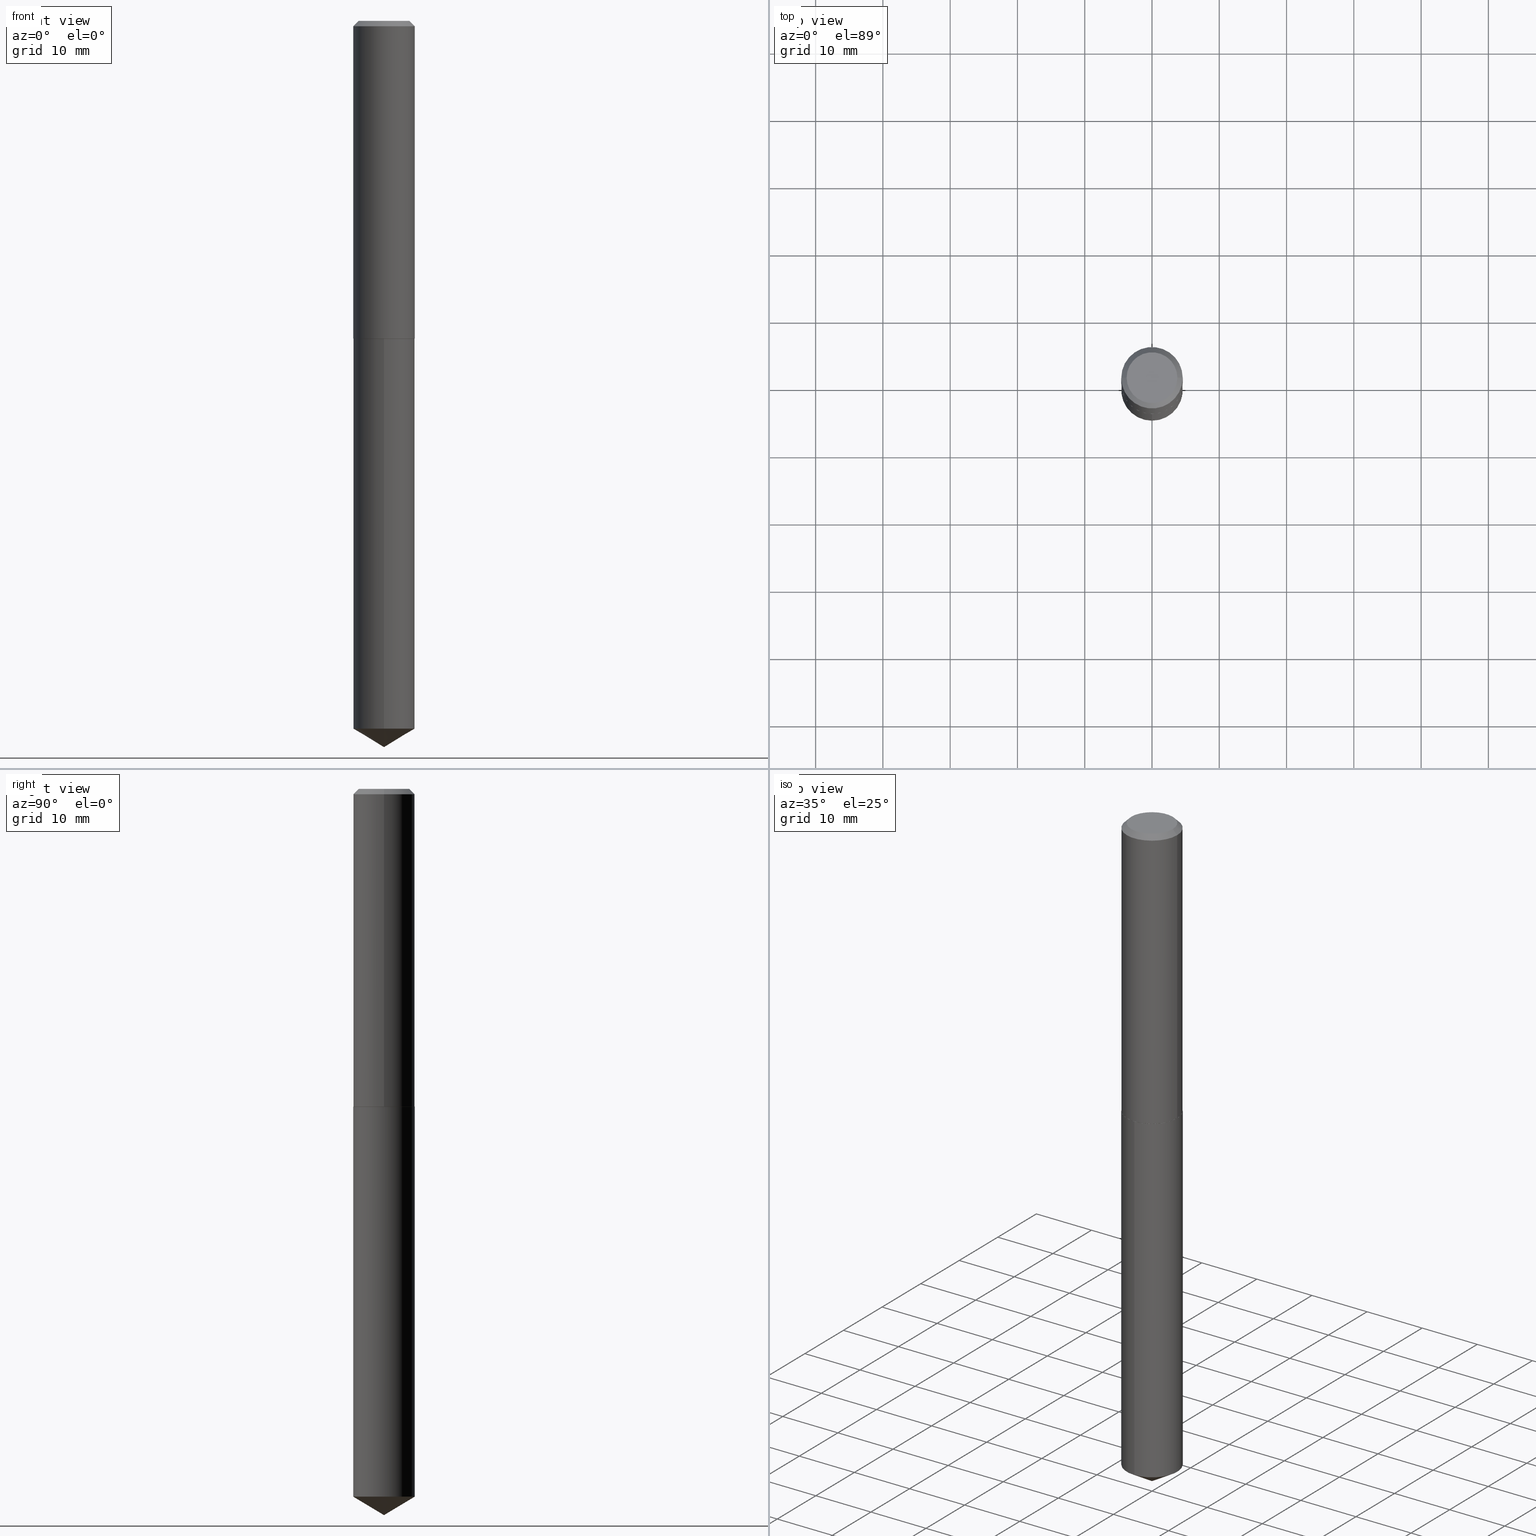
[diagram: canonical four-view strip — front | top / right | iso, engineering-drawing reading convention]
A machine part, canonical four-view strip (front | top / right | iso — engineering-drawing reading convention). The complete STEP part file that produces these views, byte-faithful:
ISO-10303-21;
HEADER;
FILE_DESCRIPTION (( 'STEP AP203' ),
    '1' );
FILE_NAME ('51123.STEP',
    '2024-04-22T18:31:56',
    ( '' ),
    ( '' ),
    'SwSTEP 2.0',
    'SolidWorks 2023',
    '' );
FILE_SCHEMA (( 'CONFIG_CONTROL_DESIGN' ));
ENDSEC;

DATA;
#1 = EDGE_LOOP ( 'NONE', ( #96, #349, #189, #140 ) ) ;
#2 = CALENDAR_DATE ( 2024, 22, 4 ) ;
#3 = DIRECTION ( 'NONE',  ( -1.000000000000000000, 6.982962677686265922E-15, 0.000000000000000000 ) ) ;
#4 = EDGE_LOOP ( 'NONE', ( #39, #310, #257, #98 ) ) ;
#5 = EDGE_CURVE ( 'NONE', #43, #371, #337, .T. ) ;
#6 = CC_DESIGN_PERSON_AND_ORGANIZATION_ASSIGNMENT ( #384, #389, ( #263 ) ) ;
#7 = VECTOR ( 'NONE', #178, 39.37007874015748143 ) ;
#8 = PRODUCT_RELATED_PRODUCT_CATEGORY ( 'detail', '', ( #123 ) ) ;
#9 = DIRECTION ( 'NONE',  ( -6.982962677686265922E-15, -1.000000000000000000, 3.040454083098790380E-15 ) ) ;
#10 = ORIENTED_EDGE ( 'NONE', *, *, #159, .F. ) ;
#11 = DIRECTION ( 'NONE',  ( -2.445489564212384011E-29, 3.491451612166653483E-15, 1.000000000000000000 ) ) ;
#12 = CARTESIAN_POINT ( 'NONE',  ( 4.547104698220641654E-29, -6.492060401444943851E-15, -1.859399999999999498 ) ) ;
#13 = AXIS2_PLACEMENT_3D ( 'NONE', #213, #262, #379 ) ;
#14 = DIRECTION ( 'NONE',  ( -2.445489564212384011E-29, 3.491451612166653483E-15, 1.000000000000000000 ) ) ;
#15 = ORIENTED_EDGE ( 'NONE', *, *, #191, .T. ) ;
#16 = CARTESIAN_POINT ( 'NONE',  ( 1.012924116273072671E-28, -1.446173634836522506E-14, -4.142025346760748405 ) ) ;
#17 = AXIS2_PLACEMENT_3D ( 'NONE', #16, #373, #229 ) ;
#18 = CIRCLE ( 'NONE', #50, 0.1797000000000001929 ) ;
#19 = ORIENTED_EDGE ( 'NONE', *, *, #45, .F. ) ;
#20 = COORDINATED_UNIVERSAL_TIME_OFFSET ( 5, 0, .BEHIND. ) ;
#21 = DIRECTION ( 'NONE',  ( -2.445489564212384011E-29, 3.491451612166653483E-15, 1.000000000000000000 ) ) ;
#22 = AXIS2_PLACEMENT_3D ( 'NONE', #206, #338, #284 ) ;
#23 = APPROVAL_STATUS ( 'not_yet_approved' ) ;
#24 = CONICAL_SURFACE ( 'NONE', #78, 0.1796999999999999986, 0.7853981633974450594 ) ;
#25 = EDGE_LOOP ( 'NONE', ( #15, #202, #370, #327 ) ) ;
#26 = CARTESIAN_POINT ( 'NONE',  ( 4.547104698220642215E-29, -6.492060401444944640E-15, -1.859399999999999942 ) ) ;
#27 = DIRECTION ( 'NONE',  ( 6.090539988449793424E-15, 0.8571673007021159973, 0.5150380749100480493 ) ) ;
#28 = FACE_OUTER_BOUND ( 'NONE', #364, .T. ) ;
#29 = PERSON_AND_ORGANIZATION ( #282, #381 ) ;
#30 = PERSON_AND_ORGANIZATION ( #282, #381 ) ;
#31 = CIRCLE ( 'NONE', #59, 0.1796999999999999986 ) ;
#32 = CC_DESIGN_APPROVAL ( #374, ( #143 ) ) ;
#33 = CYLINDRICAL_SURFACE ( 'NONE', #158, 0.1796999999999999986 ) ;
#34 = EDGE_LOOP ( 'NONE', ( #10, #249, #68 ) ) ;
#35 = CARTESIAN_POINT ( 'NONE',  ( 1.039325345295090435E-28, -1.483877989927281393E-14, -4.250000000000000000 ) ) ;
#36 = ADVANCED_FACE ( 'NONE', ( #230 ), #182, .T. ) ;
#37 = ORIENTED_EDGE ( 'NONE', *, *, #111, .T. ) ;
#38 = CARTESIAN_POINT ( 'NONE',  ( 0.000000000000000000, 0.000000000000000000, 0.000000000000000000 ) ) ;
#39 = ORIENTED_EDGE ( 'NONE', *, *, #258, .F. ) ;
#40 = DATE_AND_TIME ( #2, #183 ) ;
#41 = CARTESIAN_POINT ( 'NONE',  ( 1.012924116273072671E-28, -1.446173634836522506E-14, -4.142025346760748405 ) ) ;
#42 = APPROVAL_STATUS ( 'not_yet_approved' ) ;
#43 = VERTEX_POINT ( 'NONE', #149 ) ;
#44 = CC_DESIGN_APPROVAL ( #186, ( #248 ) ) ;
#45 = EDGE_CURVE ( 'NONE', #129, #43, #115, .T. ) ;
#46 = CARTESIAN_POINT ( 'NONE',  ( 7.642090019328603538E-31, -1.091087918388490390E-16, -0.03125000000000021511 ) ) ;
#47 = CALENDAR_DATE ( 2024, 22, 4 ) ;
#48 = ORIENTED_EDGE ( 'NONE', *, *, #256, .T. ) ;
#49 = LINE ( 'NONE', #259, #7 ) ;
#50 = AXIS2_PLACEMENT_3D ( 'NONE', #264, #237, #240 ) ;
#51 = CARTESIAN_POINT ( 'NONE',  ( 1.276845296160945187E-15, 0.1796999999999935038, -1.859400000000000164 ) ) ;
#52 = EDGE_CURVE ( 'NONE', #175, #329, #243, .T. ) ;
#53 = CC_DESIGN_DATE_AND_TIME_ASSIGNMENT ( #164, #350, ( #143 ) ) ;
#54 = DIRECTION ( 'NONE',  ( -2.445468806185136597E-29, 3.491481338843145583E-15, 1.000000000000000000 ) ) ;
#55 = LENGTH_MEASURE_WITH_UNIT ( LENGTH_MEASURE( 0.02539999999999999897 ), #316 );
#56 = DIRECTION ( 'NONE',  ( -2.445489564212384011E-29, 3.491451612166653483E-15, 1.000000000000000000 ) ) ;
#57 = DIRECTION ( 'NONE',  ( 1.000000000000000000, -6.982962677686265922E-15, 4.876176775795935232E-29 ) ) ;
#58 = EDGE_CURVE ( 'NONE', #371, #43, #31, .T. ) ;
#59 = AXIS2_PLACEMENT_3D ( 'NONE', #354, #92, #307 ) ;
#60 = AXIS2_PLACEMENT_3D ( 'NONE', #269, #295, #163 ) ;
#61 = ORIENTED_EDGE ( 'NONE', *, *, #58, .F. ) ;
#62 = EDGE_CURVE ( 'NONE', #367, #271, #154, .T. ) ;
#63 = APPLICATION_PROTOCOL_DEFINITION ( 'international standard', 'config_control_design', 1994, #332 ) ;
#64 = DIRECTION ( 'NONE',  ( 1.000000000000000000, -6.982962677686265922E-15, 4.876176775795935793E-29 ) ) ;
#65 = APPROVAL_ROLE ( '' ) ;
#66 = AXIS2_PLACEMENT_3D ( 'NONE', #41, #14, #176 ) ;
#67 = CIRCLE ( 'NONE', #231, 0.1484499999999999986 ) ;
#68 = ORIENTED_EDGE ( 'NONE', *, *, #216, .F. ) ;
#69 = EDGE_LOOP ( 'NONE', ( #304, #100 ) ) ;
#70 = ORIENTED_EDGE ( 'NONE', *, *, #5, .T. ) ;
#71 = ORIENTED_EDGE ( 'NONE', *, *, #62, .F. ) ;
#72 = VECTOR ( 'NONE', #280, 39.37007874015748143 ) ;
#73 = APPROVAL_ROLE ( '' ) ;
#74 = DIRECTION ( 'NONE',  ( -2.445489564212384011E-29, 3.491451612166653483E-15, 1.000000000000000000 ) ) ;
#75 = UNCERTAINTY_MEASURE_WITH_UNIT (LENGTH_MEASURE( 1.000000000000000082E-05 ), #323, 'distance_accuracy_value', 'NONE');
#76 = ORIENTED_EDGE ( 'NONE', *, *, #293, .T. ) ;
#77 = CIRCLE ( 'NONE', #66, 0.1796999999999999986 ) ;
#78 = AXIS2_PLACEMENT_3D ( 'NONE', #144, #366, #120 ) ;
#79 = CC_DESIGN_PERSON_AND_ORGANIZATION_ASSIGNMENT ( #317, #270, ( #248 ) ) ;
#80 = PERSON_AND_ORGANIZATION_ROLE ( 'design_owner' ) ;
#81 = DIRECTION ( 'NONE',  ( -2.445468806185136597E-29, 3.491481338843145583E-15, 1.000000000000000000 ) ) ;
#82 = APPROVAL ( #23, 'UNSPECIFIED' ) ;
#83 = DIRECTION ( 'NONE',  ( 1.000000000000000000, -6.982962677686265922E-15, 0.000000000000000000 ) ) ;
#84 = DIRECTION ( 'NONE',  ( -2.445489564212384011E-29, 3.491451612166653483E-15, 1.000000000000000000 ) ) ;
#85 = CIRCLE ( 'NONE', #170, 0.1796999999999999986 ) ;
#86 = DIRECTION ( 'NONE',  ( 1.000000000000000000, -6.982962677686265133E-15, 0.000000000000000000 ) ) ;
#87 = FACE_OUTER_BOUND ( 'NONE', #383, .T. ) ;
#88 = CALENDAR_DATE ( 2024, 22, 4 ) ;
#89 = DIRECTION ( 'NONE',  ( -0.7071067811864026886, 7.493145998869830357E-15, 0.7071067811866923458 ) ) ;
#90 = ADVANCED_FACE ( 'NONE', ( #179 ), #252, .T. ) ;
#91 = CARTESIAN_POINT ( 'NONE',  ( 7.642090019328603538E-31, -1.091087918388490390E-16, -0.03125000000000021511 ) ) ;
#92 = DIRECTION ( 'NONE',  ( -2.445468806185136597E-29, 3.491481338843145583E-15, 1.000000000000000000 ) ) ;
#93 = DIRECTION ( 'NONE',  ( -6.982962677686265922E-15, -1.000000000000000000, 3.040454083098790380E-15 ) ) ;
#94 = EDGE_LOOP ( 'NONE', ( #197, #245, #376, #70 ) ) ;
#95 = VECTOR ( 'NONE', #21, 39.37007874015748143 ) ;
#96 = ORIENTED_EDGE ( 'NONE', *, *, #151, .F. ) ;
#97 = CYLINDRICAL_SURFACE ( 'NONE', #325, 0.1796999999999999986 ) ;
#98 = ORIENTED_EDGE ( 'NONE', *, *, #134, .F. ) ;
#99 = SHAPE_DEFINITION_REPRESENTATION ( #347, #126 ) ;
#100 = ORIENTED_EDGE ( 'NONE', *, *, #151, .T. ) ;
#101 = DESIGN_CONTEXT ( 'detailed design', #345, 'design' ) ;
#102 = VERTEX_POINT ( 'NONE', #225 ) ;
#103 = CLOSED_SHELL ( 'NONE', ( #198, #352, #266, #382, #204 ) ) ;
#104 = AXIS2_PLACEMENT_3D ( 'NONE', #234, #54, #83 ) ;
#105 = DIRECTION ( 'NONE',  ( 1.000000000000000000, -6.982962677686265922E-15, 0.000000000000000000 ) ) ;
#106 = DIRECTION ( 'NONE',  ( -1.000000000000000000, 6.982962677686265922E-15, -4.876176775795935793E-29 ) ) ;
#107 = MANIFOLD_SOLID_BREP ( 'Body-Move/Copy2[2]', #385 ) ;
#108 = FACE_OUTER_BOUND ( 'NONE', #205, .T. ) ;
#109 = DIRECTION ( 'NONE',  ( 0.7071067811864026886, -2.468850131080739687E-15, 0.7071067811866923458 ) ) ;
#110 = DIMENSIONAL_EXPONENTS ( 1.000000000000000000, 0.000000000000000000, 0.000000000000000000, 0.000000000000000000, 0.000000000000000000, 0.000000000000000000, 0.000000000000000000 ) ;
#111 = EDGE_CURVE ( 'NONE', #226, #177, #181, .T. ) ;
#112 = CC_DESIGN_PERSON_AND_ORGANIZATION_ASSIGNMENT ( #29, #211, ( #248 ) ) ;
#113 = CARTESIAN_POINT ( 'NONE',  ( -1.254838393180120559E-15, -0.1797000000000144315, -4.142025346760747517 ) ) ;
#114 = CARTESIAN_POINT ( 'NONE',  ( 0.1797000000000001929, -7.745153053955744867E-15, -1.858899999999999775 ) ) ;
#115 = LINE ( 'NONE', #388, #152 ) ;
#116 = VECTOR ( 'NONE', #27, 39.37007874015748854 ) ;
#117 = LOCAL_TIME ( 14, 31, 56.00000000000000000, #20 ) ;
#118 = FACE_OUTER_BOUND ( 'NONE', #34, .T. ) ;
#119 = EDGE_CURVE ( 'NONE', #333, #43, #331, .T. ) ;
#120 = DIRECTION ( 'NONE',  ( -1.000000000000000000, 6.982962677686265922E-15, 0.000000000000000000 ) ) ;
#121 = CARTESIAN_POINT ( 'NONE',  ( 4.545881963817549414E-29, -6.490314660775522348E-15, -1.858899999999999775 ) ) ;
#122 = AXIS2_PLACEMENT_3D ( 'NONE', #378, #288, #157 ) ;
#123 = PRODUCT ( '51123', '51123', '', ( #127 ) ) ;
#124 = CARTESIAN_POINT ( 'NONE',  ( -1.254838393180176568E-15, -0.1797000000000064934, -1.859399999999999054 ) ) ;
#125 = EDGE_CURVE ( 'NONE', #329, #367, #77, .T. ) ;
#126 = ADVANCED_BREP_SHAPE_REPRESENTATION ( '51123', ( #353, #107, #60 ), #215 ) ;
#127 = MECHANICAL_CONTEXT ( 'NONE', #332, 'mechanical' ) ;
#128 = CARTESIAN_POINT ( 'NONE',  ( -0.1797000000000001929, -5.213469364614620154E-15, -1.858899999999999775 ) ) ;
#129 = VERTEX_POINT ( 'NONE', #319 ) ;
#130 = PERSON_AND_ORGANIZATION ( #282, #381 ) ;
#131 = CARTESIAN_POINT ( 'NONE',  ( 4.547104698220642215E-29, -6.492060401444944640E-15, -1.859399999999999942 ) ) ;
#132 = VECTOR ( 'NONE', #89, 39.37007874015748143 ) ;
#133 = COORDINATED_UNIVERSAL_TIME_OFFSET ( 5, 0, .BEHIND. ) ;
#134 = EDGE_CURVE ( 'NONE', #102, #271, #247, .T. ) ;
#135 = FACE_OUTER_BOUND ( 'NONE', #94, .T. ) ;
#136 = DIRECTION ( 'NONE',  ( -2.445468806185136597E-29, 3.491481338843145583E-15, 1.000000000000000000 ) ) ;
#137 = PLANE ( 'NONE',  #315 ) ;
#138 = ORIENTED_EDGE ( 'NONE', *, *, #293, .F. ) ;
#139 = DIRECTION ( 'NONE',  ( -2.445489564212384011E-29, 3.491451612166653483E-15, 1.000000000000000000 ) ) ;
#140 = ORIENTED_EDGE ( 'NONE', *, *, #119, .F. ) ;
#141 = PLANE ( 'NONE',  #214 ) ;
#142 = ORIENTED_EDGE ( 'NONE', *, *, #227, .T. ) ;
#143 = PRODUCT_DEFINITION ( 'UNKNOWN', '', #248, #101 ) ;
#144 = CARTESIAN_POINT ( 'NONE',  ( 7.642090019328603538E-31, -1.091087918388490390E-16, -0.03125000000000021511 ) ) ;
#145 = AXIS2_PLACEMENT_3D ( 'NONE', #26, #195, #86 ) ;
#146 = DIRECTION ( 'NONE',  ( 2.445489564212384011E-29, -3.491451612166653483E-15, -1.000000000000000000 ) ) ;
#147 = CARTESIAN_POINT ( 'NONE',  ( 1.276845296161000998E-15, 0.1796999999999854825, -4.142025346760748405 ) ) ;
#148 = DIRECTION ( 'NONE',  ( -2.445468806185136597E-29, 3.491481338843145583E-15, 1.000000000000000000 ) ) ;
#149 = CARTESIAN_POINT ( 'NONE',  ( -0.1796999999999999986, -2.022866430146284319E-15, -0.03125000000000021511 ) ) ;
#150 = ORIENTED_EDGE ( 'NONE', *, *, #125, .F. ) ;
#151 = EDGE_CURVE ( 'NONE', #278, #333, #201, .T. ) ;
#152 = VECTOR ( 'NONE', #167, 39.37007874015748143 ) ;
#153 = CIRCLE ( 'NONE', #321, 0.1797000000000001929 ) ;
#154 = LINE ( 'NONE', #308, #314 ) ;
#155 = DIRECTION ( 'NONE',  ( -2.445468806185136877E-29, 3.491481338843145188E-15, 1.000000000000000000 ) ) ;
#156 = PERSON_AND_ORGANIZATION ( #282, #381 ) ;
#157 = DIRECTION ( 'NONE',  ( 1.000000000000000000, -6.982962677686265133E-15, 4.876190851732491074E-29 ) ) ;
#158 = AXIS2_PLACEMENT_3D ( 'NONE', #244, #74, #93 ) ;
#159 = EDGE_CURVE ( 'NONE', #175, #367, #298, .T. ) ;
#160 = ORIENTED_EDGE ( 'NONE', *, *, #159, .T. ) ;
#161 = COORDINATED_UNIVERSAL_TIME_OFFSET ( 5, 0, .BEHIND. ) ;
#162 = FACE_OUTER_BOUND ( 'NONE', #69, .T. ) ;
#163 = DIRECTION ( 'NONE',  ( 1.000000000000000000, 0.000000000000000000, 0.000000000000000000 ) ) ;
#164 = DATE_AND_TIME ( #47, #193 ) ;
#165 = DIRECTION ( 'NONE',  ( 2.438088387897960049E-29, -3.491481338843145188E-15, -1.000000000000000000 ) ) ;
#166 = ADVANCED_FACE ( 'NONE', ( #28 ), #268, .F. ) ;
#167 = DIRECTION ( 'NONE',  ( -2.445468806185136877E-29, 3.491481338843145188E-15, 1.000000000000000000 ) ) ;
#168 =( NAMED_UNIT ( * ) PLANE_ANGLE_UNIT ( ) SI_UNIT ( $, .RADIAN. ) );
#169 = DIRECTION ( 'NONE',  ( 1.000000000000000000, -6.982962677686265133E-15, 0.000000000000000000 ) ) ;
#170 = AXIS2_PLACEMENT_3D ( 'NONE', #318, #56, #313 ) ;
#171 = ORIENTED_EDGE ( 'NONE', *, *, #258, .T. ) ;
#172 = DIRECTION ( 'NONE',  ( 2.445468806185136597E-29, -3.491481338843145583E-15, -1.000000000000000000 ) ) ;
#173 = ORIENTED_EDGE ( 'NONE', *, *, #5, .F. ) ;
#174 = APPROVAL_PERSON_ORGANIZATION ( #30, #186, #291 ) ;
#175 = VERTEX_POINT ( 'NONE', #299 ) ;
#176 = DIRECTION ( 'NONE',  ( -6.982962677686265922E-15, -1.000000000000000000, 3.040454083098790380E-15 ) ) ;
#177 = VERTEX_POINT ( 'NONE', #390 ) ;
#178 = DIRECTION ( 'NONE',  ( 0.7071067811865452413, -7.319954787623248157E-15, -0.7071067811865497932 ) ) ;
#179 = FACE_OUTER_BOUND ( 'NONE', #25, .T. ) ;
#180 = APPLICATION_PROTOCOL_DEFINITION ( 'international standard', 'config_control_design', 1994, #345 ) ;
#181 = LINE ( 'NONE', #114, #192 ) ;
#182 = CYLINDRICAL_SURFACE ( 'NONE', #22, 0.1797000000000001096 ) ;
#183 = LOCAL_TIME ( 14, 31, 56.00000000000000000, #210 ) ;
#184 = DIRECTION ( 'NONE',  ( -6.982962677686265922E-15, -1.000000000000000000, 3.040454083098790380E-15 ) ) ;
#185 = CARTESIAN_POINT ( 'NONE',  ( -2.335971725809281832E-47, 3.335148527799649409E-33, 9.552245033349382783E-19 ) ) ;
#186 = APPROVAL ( #212, 'UNSPECIFIED' ) ;
#187 = DATE_AND_TIME ( #242, #290 ) ;
#188 = LINE ( 'NONE', #128, #132 ) ;
#189 = ORIENTED_EDGE ( 'NONE', *, *, #58, .T. ) ;
#190 = ADVANCED_FACE ( 'NONE', ( #135 ), #281, .T. ) ;
#191 = EDGE_CURVE ( 'NONE', #226, #255, #274, .T. ) ;
#192 = VECTOR ( 'NONE', #109, 39.37007874015748143 ) ;
#193 = LOCAL_TIME ( 14, 31, 56.00000000000000000, #311 ) ;
#194 = ORIENTED_EDGE ( 'NONE', *, *, #191, .F. ) ;
#195 = DIRECTION ( 'NONE',  ( -2.445468806185136597E-29, 3.491481338843145583E-15, 1.000000000000000000 ) ) ;
#196 = CIRCLE ( 'NONE', #17, 0.1796999999999999986 ) ;
#197 = ORIENTED_EDGE ( 'NONE', *, *, #346, .F. ) ;
#198 = ADVANCED_FACE ( 'NONE', ( #360 ), #97, .T. ) ;
#199 = CC_DESIGN_PERSON_AND_ORGANIZATION_ASSIGNMENT ( #156, #207, ( #143 ) ) ;
#200 = CC_DESIGN_DATE_AND_TIME_ASSIGNMENT ( #187, #324, ( #263 ) ) ;
#201 = CIRCLE ( 'NONE', #122, 0.1484499999999999986 ) ;
#202 = ORIENTED_EDGE ( 'NONE', *, *, #246, .T. ) ;
#203 = CIRCLE ( 'NONE', #145, 0.1792000000000002480 ) ;
#204 = ADVANCED_FACE ( 'NONE', ( #108 ), #141, .F. ) ;
#205 = EDGE_LOOP ( 'NONE', ( #48, #250 ) ) ;
#206 = CARTESIAN_POINT ( 'NONE',  ( 0.000000000000000000, 0.000000000000000000, 0.000000000000000000 ) ) ;
#207 = PERSON_AND_ORGANIZATION_ROLE ( 'creator' ) ;
#208 = CARTESIAN_POINT ( 'NONE',  ( -0.1792000000000002480, -5.216118591788732144E-15, -1.859399999999999942 ) ) ;
#209 = APPROVAL_DATE_TIME ( #261, #374 ) ;
#210 = COORDINATED_UNIVERSAL_TIME_OFFSET ( 5, 0, .BEHIND. ) ;
#211 = PERSON_AND_ORGANIZATION_ROLE ( 'creator' ) ;
#212 = APPROVAL_STATUS ( 'not_yet_approved' ) ;
#213 = CARTESIAN_POINT ( 'NONE',  ( -8.588582465084819871E-28, 1.226200002629603699E-13, 35.12007874015748143 ) ) ;
#214 = AXIS2_PLACEMENT_3D ( 'NONE', #12, #146, #334 ) ;
#215 =( GEOMETRIC_REPRESENTATION_CONTEXT ( 3 ) GLOBAL_UNCERTAINTY_ASSIGNED_CONTEXT ( ( #75 ) ) GLOBAL_UNIT_ASSIGNED_CONTEXT ( ( #323, #168, #218 ) ) REPRESENTATION_CONTEXT ( 'NONE', 'WORKASPACE' ) );
#216 = EDGE_CURVE ( 'NONE', #367, #329, #196, .T. ) ;
#217 = DATE_AND_TIME ( #88, #330 ) ;
#218 =( NAMED_UNIT ( * ) SI_UNIT ( $, .STERADIAN. ) SOLID_ANGLE_UNIT ( ) );
#219 = APPROVAL_PERSON_ORGANIZATION ( #303, #374, #73 ) ;
#220 = ORIENTED_EDGE ( 'NONE', *, *, #45, .T. ) ;
#221 = EDGE_LOOP ( 'NONE', ( #302, #171, #356, #71 ) ) ;
#222 = ADVANCED_FACE ( 'NONE', ( #279 ), #24, .T. ) ;
#223 = ORIENTED_EDGE ( 'NONE', *, *, #339, .T. ) ;
#224 = ORIENTED_EDGE ( 'NONE', *, *, #246, .F. ) ;
#225 = CARTESIAN_POINT ( 'NONE',  ( 1.276845296161001393E-15, 0.1796999999999935038, -1.859400000000000164 ) ) ;
#226 = VERTEX_POINT ( 'NONE', #377 ) ;
#227 = EDGE_CURVE ( 'NONE', #177, #129, #153, .T. ) ;
#228 = CARTESIAN_POINT ( 'NONE',  ( -0.1796999999999999986, 1.145729601341373024E-15, -0.03125000000000021511 ) ) ;
#229 = DIRECTION ( 'NONE',  ( -6.982962677686265922E-15, -1.000000000000000000, 3.040454083098790380E-15 ) ) ;
#230 = FACE_OUTER_BOUND ( 'NONE', #335, .T. ) ;
#231 = AXIS2_PLACEMENT_3D ( 'NONE', #185, #148, #369 ) ;
#232 = CARTESIAN_POINT ( 'NONE',  ( -8.588582465084819871E-28, 1.226200002629603699E-13, 35.12007874015748143 ) ) ;
#233 = FACE_OUTER_BOUND ( 'NONE', #363, .T. ) ;
#234 = CARTESIAN_POINT ( 'NONE',  ( 4.545881963817549414E-29, -6.490314660775522348E-15, -1.858899999999999775 ) ) ;
#235 = CONICAL_SURFACE ( 'NONE', #342, 65.52281426576895740, 1.029744258676658086 ) ;
#236 = CARTESIAN_POINT ( 'NONE',  ( 0.1484499999999999986, -1.180190604903788595E-15, 9.552245033426891834E-19 ) ) ;
#237 = DIRECTION ( 'NONE',  ( -2.445468806185136597E-29, 3.491481338843145583E-15, 1.000000000000000000 ) ) ;
#238 = DIRECTION ( 'NONE',  ( -2.445468806185136597E-29, 3.491481338843145583E-15, 1.000000000000000000 ) ) ;
#239 = ORIENTED_EDGE ( 'NONE', *, *, #52, .F. ) ;
#240 = DIRECTION ( 'NONE',  ( 1.000000000000000000, -6.982962677686265922E-15, 0.000000000000000000 ) ) ;
#241 = AXIS2_PLACEMENT_3D ( 'NONE', #46, #81, #286 ) ;
#242 = CALENDAR_DATE ( 2024, 22, 4 ) ;
#243 = LINE ( 'NONE', #272, #116 ) ;
#244 = CARTESIAN_POINT ( 'NONE',  ( 4.547104698220641654E-29, -6.492060401444943851E-15, -1.859399999999999498 ) ) ;
#245 = ORIENTED_EDGE ( 'NONE', *, *, #357, .F. ) ;
#246 = EDGE_CURVE ( 'NONE', #255, #129, #188, .T. ) ;
#247 = CIRCLE ( 'NONE', #380, 0.1796999999999999986 ) ;
#248 = PRODUCT_DEFINITION_FORMATION_WITH_SPECIFIED_SOURCE ( 'ANY', '', #123, .NOT_KNOWN. ) ;
#249 = ORIENTED_EDGE ( 'NONE', *, *, #52, .T. ) ;
#250 = ORIENTED_EDGE ( 'NONE', *, *, #134, .T. ) ;
#251 = CARTESIAN_POINT ( 'NONE',  ( 4.545881963817549414E-29, -6.490314660775522348E-15, -1.858899999999999775 ) ) ;
#252 = CONICAL_SURFACE ( 'NONE', #296, 0.1797000000000001929, 0.7853981633972434429 ) ;
#253 = VECTOR ( 'NONE', #155, 39.37007874015748143 ) ;
#254 = ADVANCED_FACE ( 'NONE', ( #233 ), #365, .T. ) ;
#255 = VERTEX_POINT ( 'NONE', #208 ) ;
#256 = EDGE_CURVE ( 'NONE', #271, #102, #85, .T. ) ;
#257 = ORIENTED_EDGE ( 'NONE', *, *, #62, .T. ) ;
#258 = EDGE_CURVE ( 'NONE', #329, #102, #341, .T. ) ;
#259 = CARTESIAN_POINT ( 'NONE',  ( 0.1796999999999999986, -1.341940282038393326E-15, -0.03125000000000021511 ) ) ;
#260 = CALENDAR_DATE ( 2024, 22, 4 ) ;
#261 = DATE_AND_TIME ( #260, #117 ) ;
#262 = DIRECTION ( 'NONE',  ( -2.445489564212384011E-29, 3.491451612166653483E-15, 1.000000000000000000 ) ) ;
#263 = SECURITY_CLASSIFICATION ( '', '', #267 ) ;
#264 = CARTESIAN_POINT ( 'NONE',  ( 4.545881963817549414E-29, -6.490314660775522348E-15, -1.858899999999999775 ) ) ;
#265 = DIRECTION ( 'NONE',  ( 1.000000000000000000, -6.982962677686265922E-15, 0.000000000000000000 ) ) ;
#266 = ADVANCED_FACE ( 'NONE', ( #87 ), #351, .T. ) ;
#267 = SECURITY_CLASSIFICATION_LEVEL ( 'unclassified' ) ;
#268 = PLANE ( 'NONE',  #287 ) ;
#269 = CARTESIAN_POINT ( 'NONE',  ( 0.000000000000000000, 0.000000000000000000, 0.000000000000000000 ) ) ;
#270 = PERSON_AND_ORGANIZATION_ROLE ( 'design_supplier' ) ;
#271 = VERTEX_POINT ( 'NONE', #124 ) ;
#272 = CARTESIAN_POINT ( 'NONE',  ( 1.039333132481123638E-28, -1.483866935170827622E-14, -4.250000000000000000 ) ) ;
#273 = DIRECTION ( 'NONE',  ( -2.445468806185136597E-29, 3.491481338843145583E-15, 1.000000000000000000 ) ) ;
#274 = CIRCLE ( 'NONE', #372, 0.1792000000000002480 ) ;
#275 = APPROVAL_PERSON_ORGANIZATION ( #130, #82, #65 ) ;
#276 = CARTESIAN_POINT ( 'NONE',  ( -0.1484499999999999986, 1.091175205421949460E-15, 9.552245033274982184E-19 ) ) ;
#277 = EDGE_LOOP ( 'NONE', ( #19, #358, #223, #173 ) ) ;
#278 = VERTEX_POINT ( 'NONE', #236 ) ;
#279 = FACE_OUTER_BOUND ( 'NONE', #1, .T. ) ;
#280 = DIRECTION ( 'NONE',  ( -0.7071067811865452413, 2.468850131082233000E-15, -0.7071067811865497932 ) ) ;
#281 = CONICAL_SURFACE ( 'NONE', #320, 0.1796999999999999986, 0.7853981633974450594 ) ;
#282 = PERSON ( 'UNSPECIFIED', 'UNSPECIFIED', 'UNSPECIFIED', ('UNSPECIFIED'), ('UNSPECIFIED'), ('UNSPECIFIED') ) ;
#283 = DIRECTION ( 'NONE',  ( -2.445468806185136597E-29, 3.491481338843145583E-15, 1.000000000000000000 ) ) ;
#284 = DIRECTION ( 'NONE',  ( 1.000000000000000000, -6.982962677686265922E-15, 4.876176775795935232E-29 ) ) ;
#285 = ADVANCED_FACE ( 'NONE', ( #292 ), #344, .T. ) ;
#286 = DIRECTION ( 'NONE',  ( 1.000000000000000000, -6.982962677686265922E-15, 0.000000000000000000 ) ) ;
#287 = AXIS2_PLACEMENT_3D ( 'NONE', #131, #355, #64 ) ;
#288 = DIRECTION ( 'NONE',  ( -2.445468806185136597E-29, 3.491481338843145583E-15, 1.000000000000000000 ) ) ;
#289 = VECTOR ( 'NONE', #301, 39.37007874015748143 ) ;
#290 = LOCAL_TIME ( 14, 31, 56.00000000000000000, #133 ) ;
#291 = APPROVAL_ROLE ( '' ) ;
#292 = FACE_OUTER_BOUND ( 'NONE', #277, .T. ) ;
#293 = EDGE_CURVE ( 'NONE', #255, #226, #203, .T. ) ;
#294 = ORIENTED_EDGE ( 'NONE', *, *, #312, .F. ) ;
#295 = DIRECTION ( 'NONE',  ( 0.000000000000000000, 0.000000000000000000, 1.000000000000000000 ) ) ;
#296 = AXIS2_PLACEMENT_3D ( 'NONE', #251, #283, #105 ) ;
#297 = AXIS2_PLACEMENT_3D ( 'NONE', #38, #273, #57 ) ;
#298 = LINE ( 'NONE', #35, #289 ) ;
#299 = CARTESIAN_POINT ( 'NONE',  ( 1.039333064790263240E-28, -1.483866935170827622E-14, -4.250000000000000000 ) ) ;
#300 = ORIENTED_EDGE ( 'NONE', *, *, #339, .F. ) ;
#301 = DIRECTION ( 'NONE',  ( -5.985567269335957057E-15, -0.8571673007021123336, 0.5150380749100540445 ) ) ;
#302 = ORIENTED_EDGE ( 'NONE', *, *, #216, .T. ) ;
#303 = PERSON_AND_ORGANIZATION ( #282, #381 ) ;
#304 = ORIENTED_EDGE ( 'NONE', *, *, #357, .T. ) ;
#305 = CC_DESIGN_PERSON_AND_ORGANIZATION_ASSIGNMENT ( #306, #80, ( #123 ) ) ;
#306 = PERSON_AND_ORGANIZATION ( #282, #381 ) ;
#307 = DIRECTION ( 'NONE',  ( 1.000000000000000000, -6.982962677686265922E-15, 0.000000000000000000 ) ) ;
#308 = CARTESIAN_POINT ( 'NONE',  ( -1.254838393180176568E-15, -0.1797000000000064934, -1.859399999999999054 ) ) ;
#309 = CC_DESIGN_APPROVAL ( #82, ( #263 ) ) ;
#310 = ORIENTED_EDGE ( 'NONE', *, *, #125, .T. ) ;
#311 = COORDINATED_UNIVERSAL_TIME_OFFSET ( 5, 0, .BEHIND. ) ;
#312 = EDGE_CURVE ( 'NONE', #129, #177, #18, .T. ) ;
#313 = DIRECTION ( 'NONE',  ( -6.982962677686265922E-15, -1.000000000000000000, 3.040454083098790380E-15 ) ) ;
#314 = VECTOR ( 'NONE', #11, 39.37007874015748143 ) ;
#315 = AXIS2_PLACEMENT_3D ( 'NONE', #348, #165, #106 ) ;
#316 =( LENGTH_UNIT ( ) NAMED_UNIT ( * ) SI_UNIT ( $, .METRE. ) );
#317 = PERSON_AND_ORGANIZATION ( #282, #381 ) ;
#318 = CARTESIAN_POINT ( 'NONE',  ( 4.547104698220641654E-29, -6.492060401444943851E-15, -1.859399999999999498 ) ) ;
#319 = CARTESIAN_POINT ( 'NONE',  ( -0.1797000000000001929, -5.213469364614620154E-15, -1.858899999999999775 ) ) ;
#320 = AXIS2_PLACEMENT_3D ( 'NONE', #91, #172, #3 ) ;
#321 = AXIS2_PLACEMENT_3D ( 'NONE', #121, #238, #265 ) ;
#322 = APPROVAL_DATE_TIME ( #217, #186 ) ;
#323 =( CONVERSION_BASED_UNIT ( 'INCH', #55 ) LENGTH_UNIT ( ) NAMED_UNIT ( #110 ) );
#324 = DATE_TIME_ROLE ( 'classification_date' ) ;
#325 = AXIS2_PLACEMENT_3D ( 'NONE', #387, #139, #9 ) ;
#326 = CARTESIAN_POINT ( 'NONE',  ( 4.547104698220642215E-29, -6.492060401444944640E-15, -1.859399999999999942 ) ) ;
#327 = ORIENTED_EDGE ( 'NONE', *, *, #111, .F. ) ;
#328 = ADVANCED_FACE ( 'NONE', ( #162 ), #137, .F. ) ;
#329 = VERTEX_POINT ( 'NONE', #147 ) ;
#330 = LOCAL_TIME ( 14, 31, 56.00000000000000000, #161 ) ;
#331 = LINE ( 'NONE', #228, #72 ) ;
#332 = APPLICATION_CONTEXT ( 'configuration controlled 3d designs of mechanical parts and assemblies' ) ;
#333 = VERTEX_POINT ( 'NONE', #276 ) ;
#334 = DIRECTION ( 'NONE',  ( 6.982962677686265922E-15, 1.000000000000000000, -3.491451612166653483E-15 ) ) ;
#335 = EDGE_LOOP ( 'NONE', ( #142, #220, #61, #300 ) ) ;
#336 = CARTESIAN_POINT ( 'NONE',  ( 0.1796999999999999986, -1.363947185019071028E-15, -0.03125000000000021511 ) ) ;
#337 = CIRCLE ( 'NONE', #241, 0.1796999999999999986 ) ;
#338 = DIRECTION ( 'NONE',  ( -2.445468806185136597E-29, 3.491481338843145583E-15, 1.000000000000000000 ) ) ;
#339 = EDGE_CURVE ( 'NONE', #177, #371, #362, .T. ) ;
#340 = CARTESIAN_POINT ( 'NONE',  ( 4.547104698220641654E-29, -6.492060401444943851E-15, -1.859399999999999498 ) ) ;
#341 = LINE ( 'NONE', #51, #95 ) ;
#342 = AXIS2_PLACEMENT_3D ( 'NONE', #232, #84, #343 ) ;
#343 = DIRECTION ( 'NONE',  ( -6.982962677686266711E-15, -1.000000000000000000, 3.468864327941566210E-15 ) ) ;
#344 = CYLINDRICAL_SURFACE ( 'NONE', #297, 0.1797000000000001096 ) ;
#345 = APPLICATION_CONTEXT ( 'configuration controlled 3d designs of mechanical parts and assemblies' ) ;
#346 = EDGE_CURVE ( 'NONE', #278, #371, #49, .T. ) ;
#347 = PRODUCT_DEFINITION_SHAPE ( 'NONE', 'NONE',  #143 ) ;
#348 = CARTESIAN_POINT ( 'NONE',  ( -1.167985862904640916E-47, 1.667574263899824705E-33, 4.776122516674691392E-19 ) ) ;
#349 = ORIENTED_EDGE ( 'NONE', *, *, #346, .T. ) ;
#350 = DATE_TIME_ROLE ( 'creation_date' ) ;
#351 = CONICAL_SURFACE ( 'NONE', #13, 65.52281426576895740, 1.029744258676658086 ) ;
#352 = ADVANCED_FACE ( 'NONE', ( #118 ), #235, .T. ) ;
#353 = MANIFOLD_SOLID_BREP ( 'Body-Move/Copy2[1]', #103 ) ;
#354 = CARTESIAN_POINT ( 'NONE',  ( 7.642090019328603538E-31, -1.091087918388490390E-16, -0.03125000000000021511 ) ) ;
#355 = DIRECTION ( 'NONE',  ( -2.438088387897960049E-29, 3.491481338843145188E-15, 1.000000000000000000 ) ) ;
#356 = ORIENTED_EDGE ( 'NONE', *, *, #256, .F. ) ;
#357 = EDGE_CURVE ( 'NONE', #333, #278, #67, .T. ) ;
#358 = ORIENTED_EDGE ( 'NONE', *, *, #312, .T. ) ;
#359 = APPROVAL_DATE_TIME ( #40, #82 ) ;
#360 = FACE_OUTER_BOUND ( 'NONE', #221, .T. ) ;
#361 = FACE_OUTER_BOUND ( 'NONE', #4, .T. ) ;
#362 = LINE ( 'NONE', #368, #253 ) ;
#363 = EDGE_LOOP ( 'NONE', ( #224, #76, #37, #294 ) ) ;
#364 = EDGE_LOOP ( 'NONE', ( #194, #138 ) ) ;
#365 = CONICAL_SURFACE ( 'NONE', #104, 0.1797000000000001929, 0.7853981633972434429 ) ;
#366 = DIRECTION ( 'NONE',  ( 2.445468806185136597E-29, -3.491481338843145583E-15, -1.000000000000000000 ) ) ;
#367 = VERTEX_POINT ( 'NONE', #113 ) ;
#368 = CARTESIAN_POINT ( 'NONE',  ( 0.1797000000000001096, -1.254838393180222716E-15, 8.762489666105301250E-30 ) ) ;
#369 = DIRECTION ( 'NONE',  ( 1.000000000000000000, -6.982962677686265133E-15, 4.876190851732491074E-29 ) ) ;
#370 = ORIENTED_EDGE ( 'NONE', *, *, #227, .F. ) ;
#371 = VERTEX_POINT ( 'NONE', #336 ) ;
#372 = AXIS2_PLACEMENT_3D ( 'NONE', #326, #136, #169 ) ;
#373 = DIRECTION ( 'NONE',  ( -2.445489564212384011E-29, 3.491451612166653483E-15, 1.000000000000000000 ) ) ;
#374 = APPROVAL ( #42, 'UNSPECIFIED' ) ;
#375 = DIRECTION ( 'NONE',  ( -2.445489564212384011E-29, 3.491451612166653483E-15, 1.000000000000000000 ) ) ;
#376 = ORIENTED_EDGE ( 'NONE', *, *, #119, .T. ) ;
#377 = CARTESIAN_POINT ( 'NONE',  ( 0.1792000000000002480, -7.743407313286325730E-15, -1.859399999999999942 ) ) ;
#378 = CARTESIAN_POINT ( 'NONE',  ( -2.335971725809281832E-47, 3.335148527799649409E-33, 9.552245033349382783E-19 ) ) ;
#379 = DIRECTION ( 'NONE',  ( -6.982962677686266711E-15, -1.000000000000000000, 3.468864327941566210E-15 ) ) ;
#380 = AXIS2_PLACEMENT_3D ( 'NONE', #340, #375, #184 ) ;
#381 = ORGANIZATION ( 'UNSPECIFIED', 'UNSPECIFIED', '' ) ;
#382 = ADVANCED_FACE ( 'NONE', ( #361 ), #33, .T. ) ;
#383 = EDGE_LOOP ( 'NONE', ( #239, #160, #150 ) ) ;
#384 = PERSON_AND_ORGANIZATION ( #282, #381 ) ;
#385 = CLOSED_SHELL ( 'NONE', ( #222, #36, #90, #166, #254, #285, #190, #328 ) ) ;
#386 = CC_DESIGN_SECURITY_CLASSIFICATION ( #263, ( #248 ) ) ;
#387 = CARTESIAN_POINT ( 'NONE',  ( 4.547104698220641654E-29, -6.492060401444943851E-15, -1.859399999999999498 ) ) ;
#388 = CARTESIAN_POINT ( 'NONE',  ( -0.1797000000000001096, 1.276845296160900813E-15, -8.839326357188071190E-30 ) ) ;
#389 = PERSON_AND_ORGANIZATION_ROLE ( 'classification_officer' ) ;
#390 = CARTESIAN_POINT ( 'NONE',  ( 0.1797000000000001929, -7.745153053955744867E-15, -1.858899999999999775 ) ) ;
ENDSEC;
END-ISO-10303-21;
